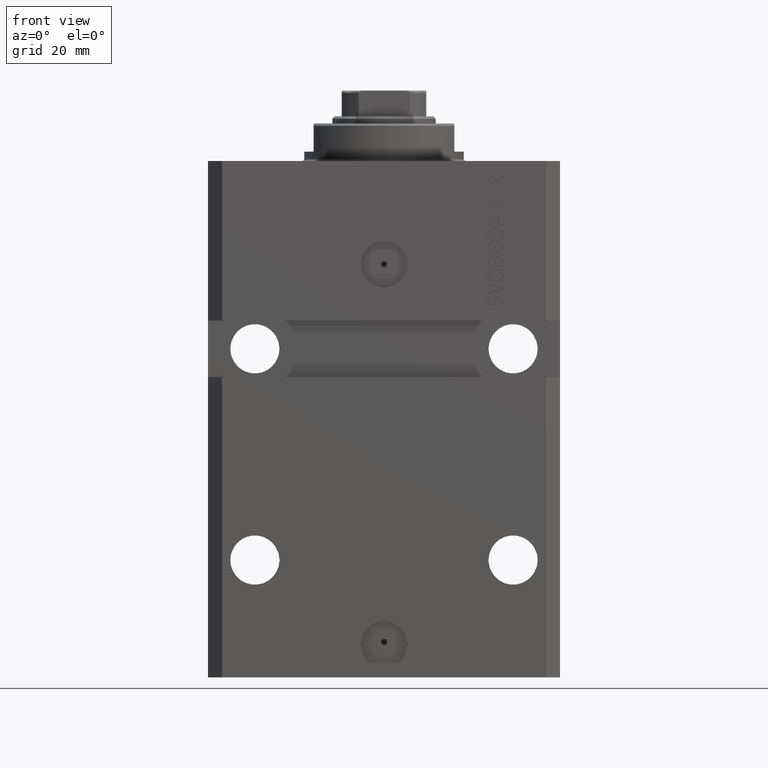
[diagram: clean part render]
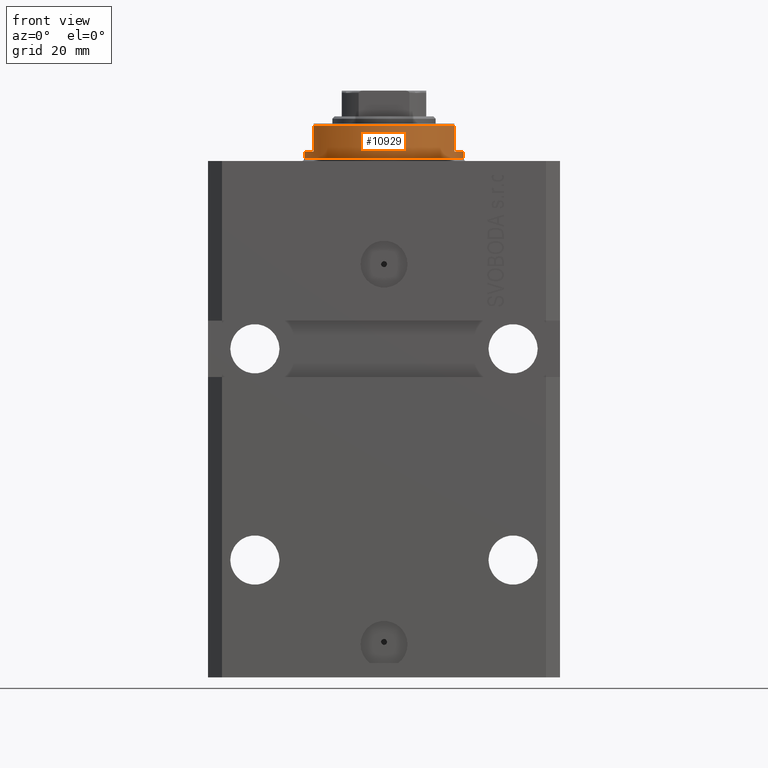
[diagram: same view with one face highlighted and labeled with its STEP entity id]
A machine part, front view. The second image highlights one B-rep face of the part: STEP entity #10929.
In plain terms, the highlighted cylindrical surface (partial cylindrical patch) has radius 17 mm, axis along (0, 0, -1).
Its self-contained STEP definition (entity closure, byte-faithful):
#746 = EDGE_CURVE ( 'NONE', #1334, #25779, #2545, .T. ) ;
#1047 = VERTEX_POINT ( 'NONE', #19807 ) ;
#1139 = CARTESIAN_POINT ( 'NONE',  ( -17.00000000000000000, 2.081899558550500280E-15, -2.000000000000000000 ) ) ;
#1240 = EDGE_CURVE ( 'NONE', #25391, #9899, #14364, .T. ) ;
#1334 = VERTEX_POINT ( 'NONE', #5781 ) ;
#2545 = LINE ( 'NONE', #40902, #18084 ) ;
#3369 = LINE ( 'NONE', #17125, #31972 ) ;
#3757 = CARTESIAN_POINT ( 'NONE',  ( -17.00000000000000000, 2.081899558550500280E-15, -0.5000000000000004441 ) ) ;
#4700 = DIRECTION ( 'NONE',  ( 0.000000000000000000, 0.000000000000000000, 1.000000000000000000 ) ) ;
#5781 = CARTESIAN_POINT ( 'NONE',  ( -14.99999999999999645, -8.000000000000003553, -2.000000000000000000 ) ) ;
#5808 = VERTEX_POINT ( 'NONE', #12456 ) ;
#5991 = CARTESIAN_POINT ( 'NONE',  ( -17.00000000000000000, 2.081899558550500280E-15, -8.000000000000000000 ) ) ;
#6222 = CARTESIAN_POINT ( 'NONE',  ( 14.99999999999999645, -8.000000000000003553, -2.000000000000000000 ) ) ;
#6289 = CIRCLE ( 'NONE', #19975, 17.00000000000000000 ) ;
#6912 = DIRECTION ( 'NONE',  ( -1.000000000000000000, 0.000000000000000000, 0.000000000000000000 ) ) ;
#9899 = VERTEX_POINT ( 'NONE', #25559 ) ;
#9904 = DIRECTION ( 'NONE',  ( -0.000000000000000000, -0.000000000000000000, -1.000000000000000000 ) ) ;
#10376 = ORIENTED_EDGE ( 'NONE', *, *, #1240, .F. ) ;
#10898 = CARTESIAN_POINT ( 'NONE',  ( 0.000000000000000000, 0.000000000000000000, -8.000000000000000000 ) ) ;
#10929 = ADVANCED_FACE ( 'NONE', ( #37540 ), #34830, .T. ) ;
#11166 = EDGE_CURVE ( 'NONE', #1047, #5808, #3369, .T. ) ;
#12148 = ORIENTED_EDGE ( 'NONE', *, *, #30707, .F. ) ;
#12224 = EDGE_LOOP ( 'NONE', ( #12148, #22208, #30395, #16335, #10376, #44608, #19991, #13505 ) ) ;
#12456 = CARTESIAN_POINT ( 'NONE',  ( 17.00000000000000000, 0.000000000000000000, -0.5000000000000004441 ) ) ;
#13354 = CIRCLE ( 'NONE', #24885, 17.00000000000000000 ) ;
#13505 = ORIENTED_EDGE ( 'NONE', *, *, #32335, .T. ) ;
#13887 = CARTESIAN_POINT ( 'NONE',  ( 0.000000000000000000, 0.000000000000000000, -2.000000000000000000 ) ) ;
#14364 = LINE ( 'NONE', #21790, #38307 ) ;
#14766 = CIRCLE ( 'NONE', #44351, 17.00000000000000000 ) ;
#14810 = DIRECTION ( 'NONE',  ( 0.000000000000000000, 0.000000000000000000, -1.000000000000000000 ) ) ;
#16259 = CARTESIAN_POINT ( 'NONE',  ( -15.00000000000000000, -8.000000000000001776, -7.500000000000007105 ) ) ;
#16335 = ORIENTED_EDGE ( 'NONE', *, *, #23337, .T. ) ;
#17008 = DIRECTION ( 'NONE',  ( -0.000000000000000000, -0.000000000000000000, 1.000000000000000000 ) ) ;
#17125 = CARTESIAN_POINT ( 'NONE',  ( 17.00000000000000000, 0.000000000000000000, -8.000000000000000000 ) ) ;
#18084 = VECTOR ( 'NONE', #34957, 1000.000000000000000 ) ;
#18858 = EDGE_CURVE ( 'NONE', #1047, #25391, #22709, .T. ) ;
#19807 = CARTESIAN_POINT ( 'NONE',  ( 17.00000000000000000, 0.000000000000000000, -2.000000000000000000 ) ) ;
#19975 = AXIS2_PLACEMENT_3D ( 'NONE', #29050, #4700, #22286 ) ;
#19991 = ORIENTED_EDGE ( 'NONE', *, *, #11166, .T. ) ;
#21790 = CARTESIAN_POINT ( 'NONE',  ( 15.00000000000000000, -8.000000000000001776, -8.000000000000000000 ) ) ;
#22208 = ORIENTED_EDGE ( 'NONE', *, *, #32859, .F. ) ;
#22286 = DIRECTION ( 'NONE',  ( -1.000000000000000000, 0.000000000000000000, 0.000000000000000000 ) ) ;
#22658 = DIRECTION ( 'NONE',  ( 0.000000000000000000, 0.000000000000000000, -1.000000000000000000 ) ) ;
#22709 = CIRCLE ( 'NONE', #43629, 17.00000000000000000 ) ;
#23126 = LINE ( 'NONE', #5991, #42128 ) ;
#23337 = EDGE_CURVE ( 'NONE', #25779, #9899, #6289, .T. ) ;
#24885 = AXIS2_PLACEMENT_3D ( 'NONE', #30214, #9904, #30650 ) ;
#25391 = VERTEX_POINT ( 'NONE', #6222 ) ;
#25559 = CARTESIAN_POINT ( 'NONE',  ( 15.00000000000000000, -8.000000000000001776, -7.500000000000007105 ) ) ;
#25779 = VERTEX_POINT ( 'NONE', #16259 ) ;
#28313 = DIRECTION ( 'NONE',  ( 0.000000000000000000, 0.000000000000000000, -1.000000000000000000 ) ) ;
#29050 = CARTESIAN_POINT ( 'NONE',  ( 0.000000000000000000, 0.000000000000000000, -7.500000000000007105 ) ) ;
#30214 = CARTESIAN_POINT ( 'NONE',  ( 0.000000000000000000, 0.000000000000000000, -0.5000000000000004441 ) ) ;
#30395 = ORIENTED_EDGE ( 'NONE', *, *, #746, .T. ) ;
#30650 = DIRECTION ( 'NONE',  ( 1.000000000000000000, 0.000000000000000000, 0.000000000000000000 ) ) ;
#30707 = EDGE_CURVE ( 'NONE', #32965, #42457, #23126, .T. ) ;
#31678 = DIRECTION ( 'NONE',  ( 1.000000000000000000, 0.000000000000000000, 0.000000000000000000 ) ) ;
#31972 = VECTOR ( 'NONE', #37440, 1000.000000000000000 ) ;
#32335 = EDGE_CURVE ( 'NONE', #5808, #42457, #13354, .T. ) ;
#32859 = EDGE_CURVE ( 'NONE', #1334, #32965, #14766, .T. ) ;
#32965 = VERTEX_POINT ( 'NONE', #1139 ) ;
#33062 = CARTESIAN_POINT ( 'NONE',  ( 0.000000000000000000, 0.000000000000000000, -2.000000000000000000 ) ) ;
#34786 = DIRECTION ( 'NONE',  ( -0.000000000000000000, -0.000000000000000000, 1.000000000000000000 ) ) ;
#34830 = CYLINDRICAL_SURFACE ( 'NONE', #44206, 17.00000000000000000 ) ;
#34957 = DIRECTION ( 'NONE',  ( 0.000000000000000000, 0.000000000000000000, -1.000000000000000000 ) ) ;
#37440 = DIRECTION ( 'NONE',  ( -0.000000000000000000, -0.000000000000000000, 1.000000000000000000 ) ) ;
#37540 = FACE_OUTER_BOUND ( 'NONE', #12224, .T. ) ;
#38307 = VECTOR ( 'NONE', #14810, 1000.000000000000000 ) ;
#39811 = DIRECTION ( 'NONE',  ( -1.000000000000000000, 0.000000000000000000, 0.000000000000000000 ) ) ;
#40902 = CARTESIAN_POINT ( 'NONE',  ( -15.00000000000000000, -8.000000000000001776, -8.000000000000000000 ) ) ;
#42128 = VECTOR ( 'NONE', #34786, 1000.000000000000000 ) ;
#42457 = VERTEX_POINT ( 'NONE', #3757 ) ;
#43629 = AXIS2_PLACEMENT_3D ( 'NONE', #13887, #28313, #6912 ) ;
#44206 = AXIS2_PLACEMENT_3D ( 'NONE', #10898, #17008, #31678 ) ;
#44351 = AXIS2_PLACEMENT_3D ( 'NONE', #33062, #22658, #39811 ) ;
#44608 = ORIENTED_EDGE ( 'NONE', *, *, #18858, .F. ) ;